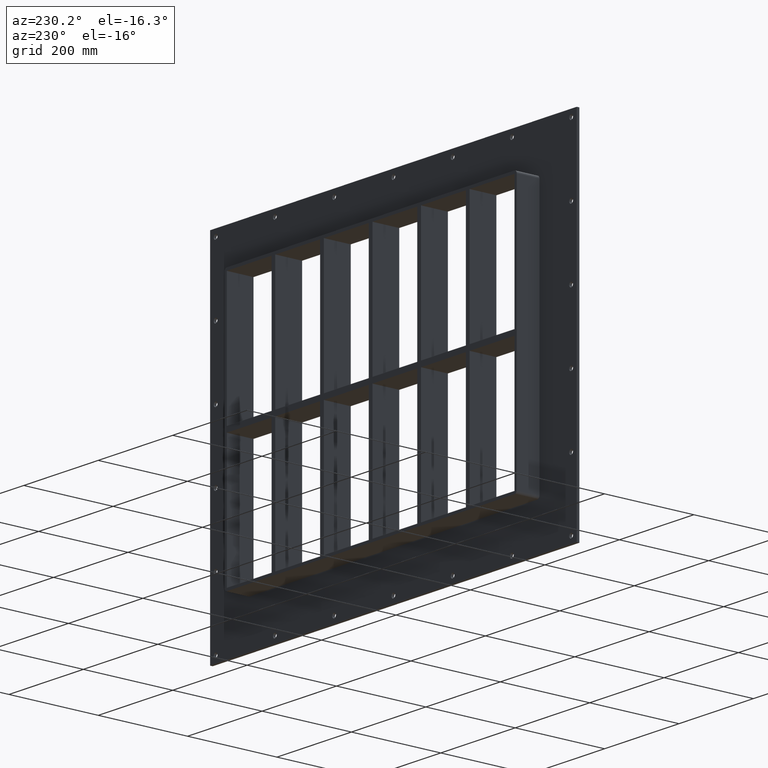
[diagram: clean part render]
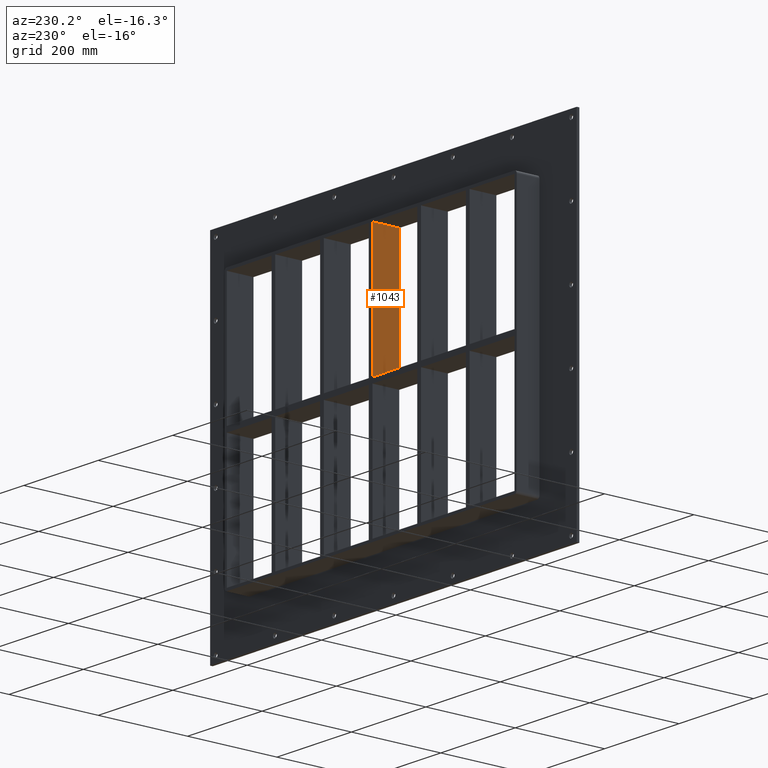
[diagram: same view with one face highlighted and labeled with its STEP entity id]
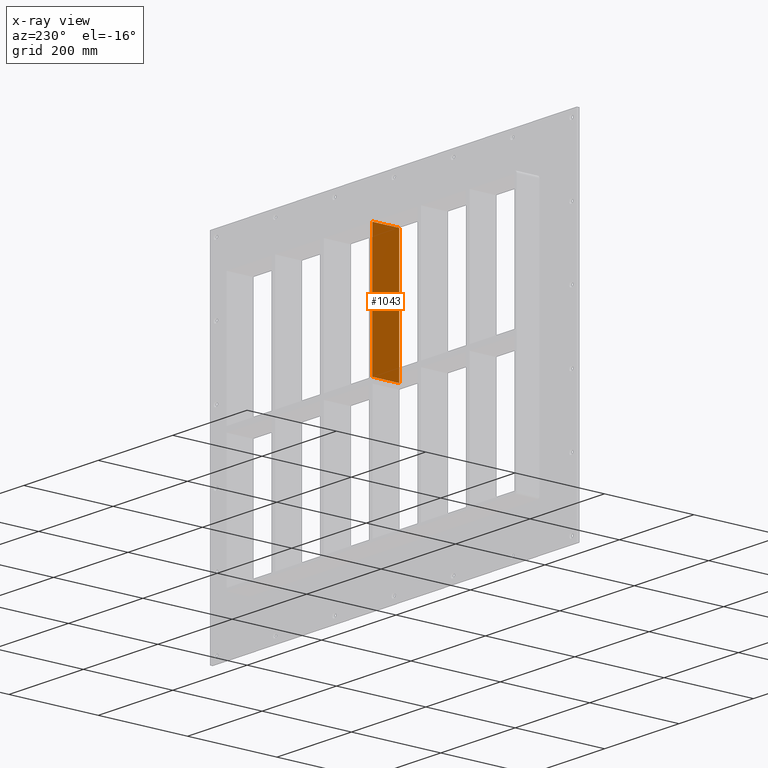
[diagram: x-ray of the same camera — body ghosted, the highlighted face saturated]
A machine part, auxiliary view. The second image highlights one B-rep face of the part: STEP entity #1043.
The next image is the same camera in x-ray: the body ghosted, the highlighted face saturated — about 0% of this face is hidden behind the body in this view.
In plain terms, the highlighted planar face has unit normal (-1, 0, 0).
Its self-contained STEP definition (entity closure, byte-faithful):
#1004=CARTESIAN_POINT('',(-5.00000000000135,-3.0,-284.00000000000006));
#1005=DIRECTION('',(-1.0,0.0,0.0));
#1006=DIRECTION('',(0.0,0.0,1.0));
#1007=AXIS2_PLACEMENT_3D('',#1004,#1005,#1006);
#1008=PLANE('',#1007);
#1009=CARTESIAN_POINT('',(-5.000000000001386,-3.0,5.999999999999943));
#1010=VERTEX_POINT('',#1009);
#1011=CARTESIAN_POINT('',(-5.000000000001386,57.0,5.999999999999943));
#1012=VERTEX_POINT('',#1011);
#1013=CARTESIAN_POINT('',(-5.000000000001403,-3.0,5.999999999999943));
#1014=DIRECTION('',(0.0,1.0,0.0));
#1015=VECTOR('',#1014,60.0);
#1016=LINE('',#1013,#1015);
#1017=EDGE_CURVE('',#1010,#1012,#1016,.T.);
#1018=ORIENTED_EDGE('',*,*,#1017,.F.);
#1019=CARTESIAN_POINT('',(-5.000000000001421,-3.0,284.00000000000006));
#1020=VERTEX_POINT('',#1019);
#1021=CARTESIAN_POINT('',(-5.000000000001386,-3.0,5.999999999999943));
#1022=DIRECTION('',(0.0,0.0,1.0));
#1023=VECTOR('',#1022,278.00000000000011);
#1024=LINE('',#1021,#1023);
#1025=EDGE_CURVE('',#1010,#1020,#1024,.T.);
#1026=ORIENTED_EDGE('',*,*,#1025,.T.);
#1027=CARTESIAN_POINT('',(-5.000000000001421,57.0,284.00000000000006));
#1028=VERTEX_POINT('',#1027);
#1029=CARTESIAN_POINT('',(-5.000000000001421,57.000000000000007,284.0));
#1030=DIRECTION('',(0.0,-1.0,0.0));
#1031=VECTOR('',#1030,60.000000000000007);
#1032=LINE('',#1029,#1031);
#1033=EDGE_CURVE('',#1028,#1020,#1032,.T.);
#1034=ORIENTED_EDGE('',*,*,#1033,.F.);
#1035=CARTESIAN_POINT('',(-5.000000000001386,57.0,5.999999999999943));
#1036=DIRECTION('',(0.0,0.0,1.0));
#1037=VECTOR('',#1036,278.00000000000011);
#1038=LINE('',#1035,#1037);
#1039=EDGE_CURVE('',#1012,#1028,#1038,.T.);
#1040=ORIENTED_EDGE('',*,*,#1039,.F.);
#1041=EDGE_LOOP('',(#1018,#1026,#1034,#1040));
#1042=FACE_OUTER_BOUND('',#1041,.T.);
#1043=ADVANCED_FACE('',(#1042),#1008,.T.);